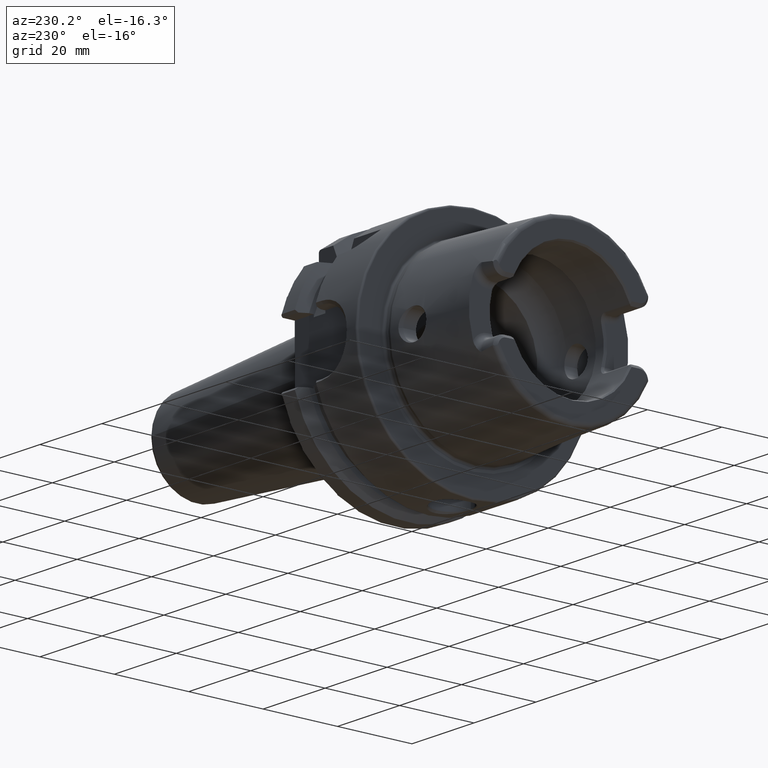
[diagram: clean part render]
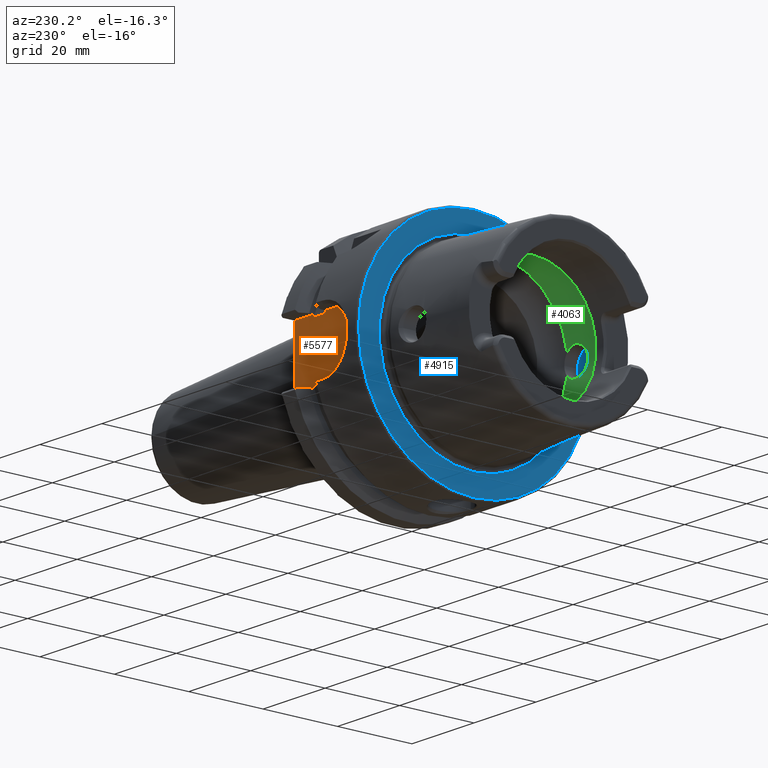
[diagram: same view with three faces highlighted in distinct colors, each labeled with its STEP entity id]
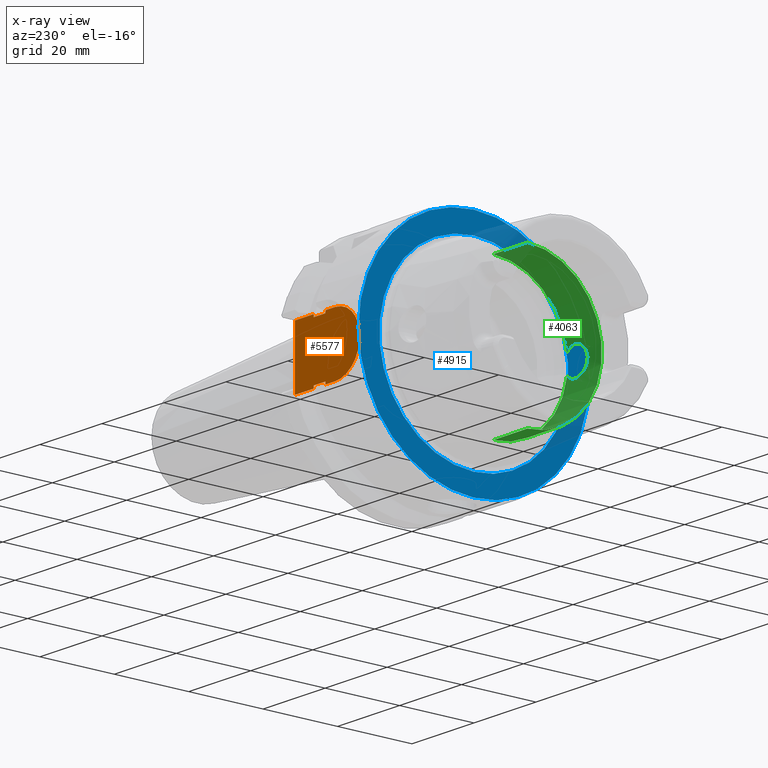
[diagram: x-ray of the same camera — body ghosted, the three highlighted faces saturated]
A machine part, auxiliary view with three faces highlighted in distinct colors.
The next image is the same camera in x-ray (body ghosted, the three faces saturated) — at least one of them is partly hidden behind the body in this view.
Their STEP definitions:

[orange] entity #5577 — the highlighted planar face has unit normal (0, -1, 0).
#1320=DIRECTION('',(0.E0,0.E0,1.E0));
#1321=VECTOR('',#1320,6.299212598425E-1);
#1322=CARTESIAN_POINT('',(1.023622047244E0,1.043307086614E0,
-3.149606299213E-1));
#1323=LINE('',#1322,#1321);
#1829=DIRECTION('',(0.E0,0.E0,1.E0));
#1830=VECTOR('',#1829,2.565081778151E-2);
#1831=CARTESIAN_POINT('',(6.348425196850E-1,1.043307086614E0,
-3.149606299213E-1));
#1832=LINE('',#1831,#1830);
#1853=DIRECTION('',(0.E0,0.E0,1.E0));
#1854=VECTOR('',#1853,2.565081778151E-2);
#1855=CARTESIAN_POINT('',(6.348425196850E-1,1.043307086614E0,
2.893098121397E-1));
#1856=LINE('',#1855,#1854);
#2066=DIRECTION('',(0.E0,0.E0,1.E0));
#2067=VECTOR('',#2066,2.565081778151E-2);
#2068=CARTESIAN_POINT('',(7.824803149606E-1,1.043307086614E0,
-3.149606299213E-1));
#2069=LINE('',#2068,#2067);
#2082=DIRECTION('',(0.E0,0.E0,1.E0));
#2083=VECTOR('',#2082,2.565081778151E-2);
#2084=CARTESIAN_POINT('',(7.824803149606E-1,1.043307086614E0,
2.893098121397E-1));
#2085=LINE('',#2084,#2083);
#2106=CARTESIAN_POINT('',(5.118110236220E-1,1.043307086614E0,0.E0));
#2107=DIRECTION('',(0.E0,-1.E0,0.E0));
#2108=DIRECTION('',(0.E0,0.E0,1.E0));
#2109=AXIS2_PLACEMENT_3D('',#2106,#2107,#2108);
#2111=DIRECTION('',(1.E0,0.E0,0.E0));
#2112=VECTOR('',#2111,1.230314960630E-1);
#2113=CARTESIAN_POINT('',(5.118110236220E-1,1.043307086614E0,
-3.149606299213E-1));
#2114=LINE('',#2113,#2112);
#2115=DIRECTION('',(1.E0,0.E0,0.E0));
#2116=VECTOR('',#2115,2.411417322835E-1);
#2117=CARTESIAN_POINT('',(7.824803149606E-1,1.043307086614E0,
-3.149606299213E-1));
#2118=LINE('',#2117,#2116);
#2119=DIRECTION('',(-1.E0,0.E0,0.E0));
#2120=VECTOR('',#2119,2.411417322835E-1);
#2121=CARTESIAN_POINT('',(1.023622047244E0,1.043307086614E0,3.149606299213E-1));
#2122=LINE('',#2121,#2120);
#2123=DIRECTION('',(-1.E0,0.E0,0.E0));
#2124=VECTOR('',#2123,1.230314960630E-1);
#2125=CARTESIAN_POINT('',(6.348425196850E-1,1.043307086614E0,
3.149606299213E-1));
#2126=LINE('',#2125,#2124);
#2221=DIRECTION('',(1.E0,0.E0,0.E0));
#2222=VECTOR('',#2221,1.476377952756E-1);
#2223=CARTESIAN_POINT('',(6.348425196850E-1,1.043307086614E0,
2.893098121397E-1));
#2224=LINE('',#2223,#2222);
#2239=DIRECTION('',(1.E0,0.E0,0.E0));
#2240=VECTOR('',#2239,1.476377952756E-1);
#2241=CARTESIAN_POINT('',(6.348425196850E-1,1.043307086614E0,
-2.893098121397E-1));
#2242=LINE('',#2241,#2240);
#2795=CARTESIAN_POINT('',(1.023622047244E0,1.043307086614E0,
-3.149606299213E-1));
#2796=CARTESIAN_POINT('',(1.023622047244E0,1.043307086614E0,3.149606299213E-1));
#2797=VERTEX_POINT('',#2795);
#2798=VERTEX_POINT('',#2796);
#2799=CARTESIAN_POINT('',(6.348425196850E-1,1.043307086614E0,
-3.149606299213E-1));
#2800=CARTESIAN_POINT('',(6.348425196850E-1,1.043307086614E0,
-2.893098121397E-1));
#2801=VERTEX_POINT('',#2799);
#2802=VERTEX_POINT('',#2800);
#2803=CARTESIAN_POINT('',(6.348425196850E-1,1.043307086614E0,
2.893098121397E-1));
#2804=CARTESIAN_POINT('',(6.348425196850E-1,1.043307086614E0,
3.149606299213E-1));
#2805=VERTEX_POINT('',#2803);
#2806=VERTEX_POINT('',#2804);
#2811=CARTESIAN_POINT('',(7.824803149606E-1,1.043307086614E0,
-2.893098121397E-1));
#2812=VERTEX_POINT('',#2811);
#2813=CARTESIAN_POINT('',(7.824803149606E-1,1.043307086614E0,
2.893098121397E-1));
#2814=VERTEX_POINT('',#2813);
#2815=CARTESIAN_POINT('',(7.824803149606E-1,1.043307086614E0,
-3.149606299213E-1));
#2816=VERTEX_POINT('',#2815);
#2817=CARTESIAN_POINT('',(7.824803149606E-1,1.043307086614E0,
3.149606299213E-1));
#2818=VERTEX_POINT('',#2817);
#2823=CARTESIAN_POINT('',(5.118110236220E-1,1.043307086614E0,
3.149606299213E-1));
#2824=CARTESIAN_POINT('',(5.118110236220E-1,1.043307086614E0,
-3.149606299213E-1));
#2825=VERTEX_POINT('',#2823);
#2826=VERTEX_POINT('',#2824);
#5553=CARTESIAN_POINT('',(0.E0,1.043307086614E0,0.E0));
#5554=DIRECTION('',(0.E0,-1.E0,0.E0));
#5555=DIRECTION('',(1.E0,0.E0,0.E0));
#5556=AXIS2_PLACEMENT_3D('',#5553,#5554,#5555);
#5557=PLANE('',#5556);
#5559=ORIENTED_EDGE('',*,*,#5558,.T.);
#5560=ORIENTED_EDGE('',*,*,#5532,.T.);
#5561=ORIENTED_EDGE('',*,*,#5236,.T.);
#5563=ORIENTED_EDGE('',*,*,#5562,.T.);
#5564=ORIENTED_EDGE('',*,*,#5495,.F.);
#5565=ORIENTED_EDGE('',*,*,#5546,.T.);
#5566=ORIENTED_EDGE('',*,*,#4711,.T.);
#5568=ORIENTED_EDGE('',*,*,#5567,.T.);
#5569=ORIENTED_EDGE('',*,*,#5514,.F.);
#5571=ORIENTED_EDGE('',*,*,#5570,.F.);
#5572=ORIENTED_EDGE('',*,*,#5258,.T.);
#5574=ORIENTED_EDGE('',*,*,#5573,.T.);
#5575=EDGE_LOOP('',(#5559,#5560,#5561,#5563,#5564,#5565,#5566,#5568,#5569,#5571,
#5572,#5574));
#5576=FACE_OUTER_BOUND('',#5575,.F.);
#5577=ADVANCED_FACE('',(#5576),#5557,.F.);
#2110=CIRCLE('',#2109,3.149606299213E-1);
#4711=EDGE_CURVE('',#2797,#2798,#1323,.T.);
#5236=EDGE_CURVE('',#2801,#2802,#1832,.T.);
#5258=EDGE_CURVE('',#2805,#2806,#1856,.T.);
#5495=EDGE_CURVE('',#2816,#2812,#2069,.T.);
#5514=EDGE_CURVE('',#2814,#2818,#2085,.T.);
#5532=EDGE_CURVE('',#2826,#2801,#2114,.T.);
#5546=EDGE_CURVE('',#2816,#2797,#2118,.T.);
#5558=EDGE_CURVE('',#2825,#2826,#2110,.T.);
#5562=EDGE_CURVE('',#2802,#2812,#2242,.T.);
#5567=EDGE_CURVE('',#2798,#2818,#2122,.T.);
#5570=EDGE_CURVE('',#2805,#2814,#2224,.T.);
#5573=EDGE_CURVE('',#2806,#2825,#2126,.T.);

[blue] entity #4915 — the highlighted planar face has unit normal (1, 0, 0).
#1576=CARTESIAN_POINT('',(0.E0,0.E0,0.E0));
#1577=DIRECTION('',(1.E0,0.E0,0.E0));
#1578=DIRECTION('',(0.E0,0.E0,-1.E0));
#1579=AXIS2_PLACEMENT_3D('',#1576,#1577,#1578);
#1581=CARTESIAN_POINT('',(0.E0,0.E0,0.E0));
#1582=DIRECTION('',(1.E0,0.E0,0.E0));
#1583=DIRECTION('',(0.E0,0.E0,1.E0));
#1584=AXIS2_PLACEMENT_3D('',#1581,#1582,#1583);
#1586=CARTESIAN_POINT('',(0.E0,0.E0,0.E0));
#1587=DIRECTION('',(-1.E0,0.E0,0.E0));
#1588=DIRECTION('',(0.E0,0.E0,1.E0));
#1589=AXIS2_PLACEMENT_3D('',#1586,#1587,#1588);
#1591=CARTESIAN_POINT('',(0.E0,0.E0,0.E0));
#1592=DIRECTION('',(-1.E0,0.E0,0.E0));
#1593=DIRECTION('',(0.E0,0.E0,-1.E0));
#1594=AXIS2_PLACEMENT_3D('',#1591,#1592,#1593);
#2775=CARTESIAN_POINT('',(0.E0,0.E0,-1.000803149606E0));
#2776=CARTESIAN_POINT('',(0.E0,0.E0,1.000803149606E0));
#2777=VERTEX_POINT('',#2775);
#2778=VERTEX_POINT('',#2776);
#3084=CARTESIAN_POINT('',(0.E0,0.E0,1.220472440945E0));
#3085=CARTESIAN_POINT('',(0.E0,0.E0,-1.220472440945E0));
#3086=VERTEX_POINT('',#3084);
#3087=VERTEX_POINT('',#3085);
#4899=CARTESIAN_POINT('',(0.E0,0.E0,0.E0));
#4900=DIRECTION('',(1.E0,0.E0,0.E0));
#4901=DIRECTION('',(0.E0,0.E0,1.E0));
#4902=AXIS2_PLACEMENT_3D('',#4899,#4900,#4901);
#4903=PLANE('',#4902);
#4904=ORIENTED_EDGE('',*,*,#4889,.F.);
#4906=ORIENTED_EDGE('',*,*,#4905,.F.);
#4907=EDGE_LOOP('',(#4904,#4906));
#4908=FACE_OUTER_BOUND('',#4907,.F.);
#4910=ORIENTED_EDGE('',*,*,#4909,.F.);
#4912=ORIENTED_EDGE('',*,*,#4911,.F.);
#4913=EDGE_LOOP('',(#4910,#4912));
#4914=FACE_BOUND('',#4913,.F.);
#4915=ADVANCED_FACE('',(#4908,#4914),#4903,.F.);
#1580=CIRCLE('',#1579,1.000803149606E0);
#1585=CIRCLE('',#1584,1.000803149606E0);
#1590=CIRCLE('',#1589,1.220472440945E0);
#1595=CIRCLE('',#1594,1.220472440945E0);
#4889=EDGE_CURVE('',#3086,#3087,#1590,.T.);
#4905=EDGE_CURVE('',#3087,#3086,#1595,.T.);
#4909=EDGE_CURVE('',#2777,#2778,#1580,.T.);
#4911=EDGE_CURVE('',#2778,#2777,#1585,.T.);

[green] entity #4063 — the highlighted cylindrical surface (partial cylindrical patch) has radius 20 mm, axis along (1, 0, 0).
#639=CARTESIAN_POINT('',(-6.796840414941E-1,0.E0,0.E0));
#640=DIRECTION('',(-1.E0,0.E0,0.E0));
#641=DIRECTION('',(0.E0,0.E0,-1.E0));
#642=AXIS2_PLACEMENT_3D('',#639,#640,#641);
#791=CARTESIAN_POINT('',(-5.019685039370E-1,-7.874015708661E-1,0.E0));
#792=CARTESIAN_POINT('',(-5.019685039370E-1,-7.874015708661E-1,
-9.925936088082E-3));
#793=CARTESIAN_POINT('',(-5.000106445959E-1,-7.870309940842E-1,
-2.935991372589E-2));
#794=CARTESIAN_POINT('',(-4.912806579868E-1,-7.854412114399E-1,
-5.775882548703E-2));
#795=CARTESIAN_POINT('',(-4.770911424619E-1,-7.830618997100E-1,
-8.375745262049E-2));
#796=CARTESIAN_POINT('',(-4.581578257033E-1,-7.802803366856E-1,
-1.063409174016E-1));
#797=CARTESIAN_POINT('',(-4.349324489261E-1,-7.774947338312E-1,
-1.248628726955E-1));
#798=CARTESIAN_POINT('',(-4.086766968532E-1,-7.751788154182E-1,
-1.383392127415E-1));
#799=CARTESIAN_POINT('',(-3.798455903992E-1,-7.736722009178E-1,
-1.464235007100E-1));
#800=CARTESIAN_POINT('',(-3.504298702615E-1,-7.732577317856E-1,
-1.485671470986E-1));
#801=CARTESIAN_POINT('',(-3.209691006274E-1,-7.739762676486E-1,
-1.448242366235E-1));
#802=CARTESIAN_POINT('',(-2.928023692533E-1,-7.757168360758E-1,
-1.353494148439E-1));
#803=CARTESIAN_POINT('',(-2.664042103441E-1,-7.782975441516E-1,
-1.198210517652E-1));
#804=CARTESIAN_POINT('',(-2.524484910152E-1,-7.800925012547E-1,
-1.072620463708E-1));
#805=CARTESIAN_POINT('',(-2.460629921260E-1,-7.809777292935E-1,
-1.003743998739E-1));
#807=CARTESIAN_POINT('',(-2.460629921260E-1,-7.809777292935E-1,
1.003743998739E-1));
#808=CARTESIAN_POINT('',(-2.524687572930E-1,-7.800896917205E-1,
1.072839063632E-1));
#809=CARTESIAN_POINT('',(-2.664634454070E-1,-7.782896828569E-1,
1.198744937294E-1));
#810=CARTESIAN_POINT('',(-2.929888001290E-1,-7.757011636302E-1,
1.354388361477E-1));
#811=CARTESIAN_POINT('',(-3.211394912884E-1,-7.739699419945E-1,
1.448569698805E-1));
#812=CARTESIAN_POINT('',(-3.505264718735E-1,-7.732575066258E-1,
1.485684582686E-1));
#813=CARTESIAN_POINT('',(-3.799564198778E-1,-7.736761016122E-1,
1.464029508905E-1));
#814=CARTESIAN_POINT('',(-4.087243233155E-1,-7.751827730378E-1,
1.383172113561E-1));
#815=CARTESIAN_POINT('',(-4.349616426028E-1,-7.774979999486E-1,
1.248416878723E-1));
#816=CARTESIAN_POINT('',(-4.581479476636E-1,-7.802792343336E-1,
1.063478401787E-1));
#817=CARTESIAN_POINT('',(-4.770853388601E-1,-7.830609125396E-1,
8.376667860322E-2));
#818=CARTESIAN_POINT('',(-4.912742792944E-1,-7.854401140803E-1,
5.777286605703E-2));
#819=CARTESIAN_POINT('',(-5.000081223002E-1,-7.870305085561E-1,
2.937477565976E-2));
#820=CARTESIAN_POINT('',(-5.019685039370E-1,-7.874015708661E-1,
9.932069995996E-3));
#821=CARTESIAN_POINT('',(-5.019685039370E-1,-7.874015708661E-1,0.E0));
#823=CARTESIAN_POINT('',(-2.460629921260E-1,0.E0,0.E0));
#824=DIRECTION('',(1.E0,0.E0,0.E0));
#825=DIRECTION('',(0.E0,0.E0,1.E0));
#826=AXIS2_PLACEMENT_3D('',#823,#824,#825);
#828=DIRECTION('',(-1.E0,0.E0,0.E0));
#829=VECTOR('',#828,4.336210493681E-1);
#830=CARTESIAN_POINT('',(-2.460629921260E-1,0.E0,7.874015708661E-1));
#831=LINE('',#830,#829);
#832=DIRECTION('',(-1.E0,0.E0,0.E0));
#833=VECTOR('',#832,4.336210493681E-1);
#834=CARTESIAN_POINT('',(-2.460629921260E-1,0.E0,-7.874015708661E-1));
#835=LINE('',#834,#833);
#836=CARTESIAN_POINT('',(-2.460629921260E-1,0.E0,0.E0));
#837=DIRECTION('',(1.E0,0.E0,0.E0));
#838=DIRECTION('',(0.E0,-9.918417211620E-1,-1.274754884772E-1));
#839=AXIS2_PLACEMENT_3D('',#836,#837,#838);
#2763=CARTESIAN_POINT('',(-6.796840414941E-1,0.E0,-7.874015708661E-1));
#2764=CARTESIAN_POINT('',(-6.796840414941E-1,0.E0,7.874015708661E-1));
#2765=VERTEX_POINT('',#2763);
#2766=VERTEX_POINT('',#2764);
#2771=CARTESIAN_POINT('',(-2.460629921260E-1,0.E0,-7.874015708661E-1));
#2772=VERTEX_POINT('',#2771);
#2773=CARTESIAN_POINT('',(-2.460629921260E-1,0.E0,7.874015708661E-1));
#2774=VERTEX_POINT('',#2773);
#3021=VERTEX_POINT('',#791);
#3022=VERTEX_POINT('',#805);
#3023=VERTEX_POINT('',#807);
#4049=CARTESIAN_POINT('',(0.E0,0.E0,0.E0));
#4050=DIRECTION('',(1.E0,0.E0,0.E0));
#4051=DIRECTION('',(0.E0,0.E0,1.E0));
#4052=AXIS2_PLACEMENT_3D('',#4049,#4050,#4051);
#4053=CYLINDRICAL_SURFACE('',#4052,7.874015708661E-1);
#4054=ORIENTED_EDGE('',*,*,#3947,.F.);
#4055=ORIENTED_EDGE('',*,*,#4007,.F.);
#4056=ORIENTED_EDGE('',*,*,#4043,.F.);
#4057=ORIENTED_EDGE('',*,*,#3912,.T.);
#4058=ORIENTED_EDGE('',*,*,#3880,.F.);
#4059=ORIENTED_EDGE('',*,*,#3909,.F.);
#4060=ORIENTED_EDGE('',*,*,#4037,.F.);
#4061=EDGE_LOOP('',(#4054,#4055,#4056,#4057,#4058,#4059,#4060));
#4062=FACE_OUTER_BOUND('',#4061,.F.);
#4063=ADVANCED_FACE('',(#4062),#4053,.F.);
#643=CIRCLE('',#642,7.874015708661E-1);
#806=B_SPLINE_CURVE_WITH_KNOTS('',3,(#791,#792,#793,#794,#795,#796,#797,#798,
#799,#800,#801,#802,#803,#804,#805),.UNSPECIFIED.,.F.,.F.,(4,1,1,1,1,1,1,1,1,1,
1,1,4),(0.E0,8.333333333333E-2,1.666666666667E-1,2.5E-1,3.333333333333E-1,
4.166666666667E-1,5.E-1,5.833333333333E-1,6.666666666667E-1,7.5E-1,
8.333333333333E-1,9.166666666667E-1,1.E0),.UNSPECIFIED.);
#822=B_SPLINE_CURVE_WITH_KNOTS('',3,(#807,#808,#809,#810,#811,#812,#813,#814,
#815,#816,#817,#818,#819,#820,#821),.UNSPECIFIED.,.F.,.F.,(4,1,1,1,1,1,1,1,1,1,
1,1,4),(0.E0,8.333333333333E-2,1.666666666667E-1,2.5E-1,3.333333333333E-1,
4.166666666667E-1,5.E-1,5.833333333333E-1,6.666666666667E-1,7.5E-1,
8.333333333333E-1,9.166666666667E-1,1.E0),.UNSPECIFIED.);
#827=CIRCLE('',#826,7.874015708661E-1);
#840=CIRCLE('',#839,7.874015708661E-1);
#3880=EDGE_CURVE('',#2765,#2766,#643,.T.);
#3909=EDGE_CURVE('',#2772,#2765,#835,.T.);
#3912=EDGE_CURVE('',#2774,#2766,#831,.T.);
#3947=EDGE_CURVE('',#3021,#3022,#806,.T.);
#4007=EDGE_CURVE('',#3023,#3021,#822,.T.);
#4037=EDGE_CURVE('',#3022,#2772,#840,.T.);
#4043=EDGE_CURVE('',#2774,#3023,#827,.T.);